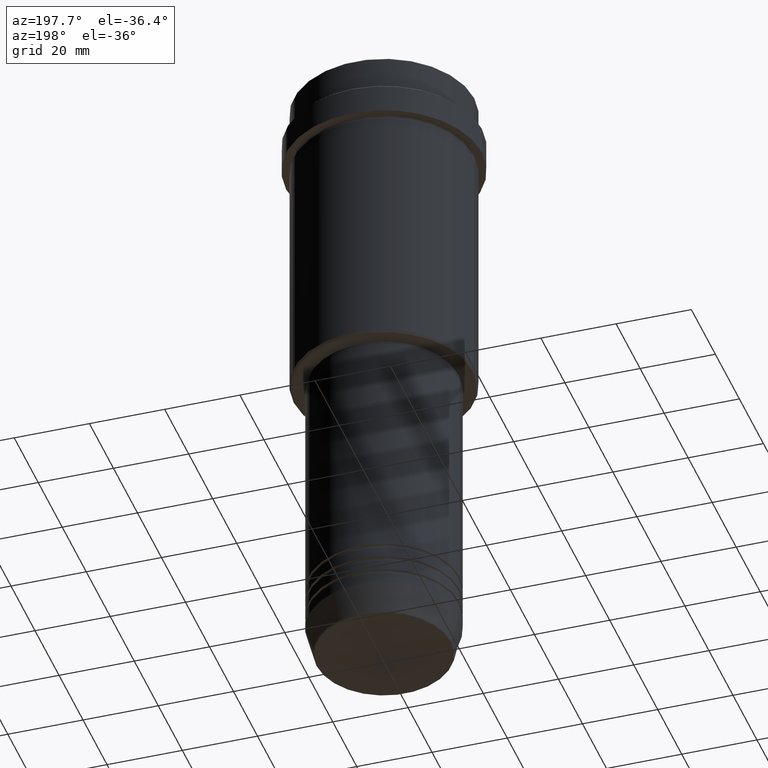
[diagram: clean part render]
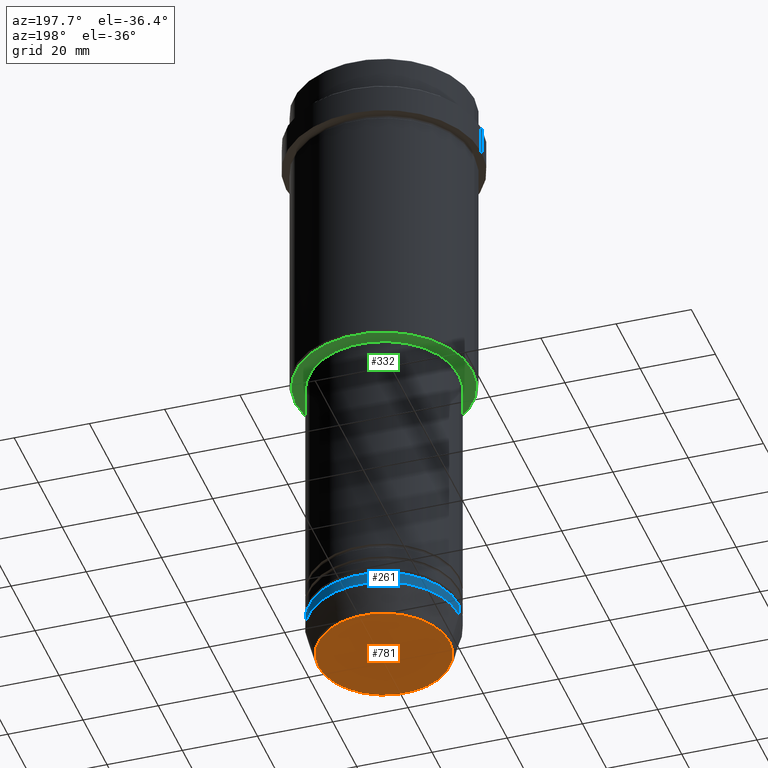
[diagram: same view with three faces highlighted in distinct colors, each labeled with its STEP entity id]
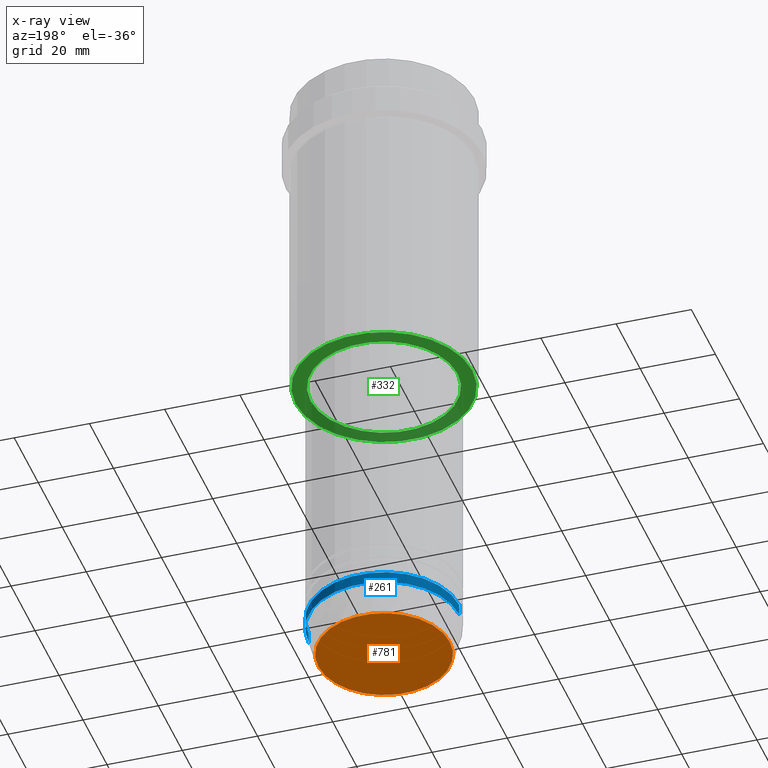
[diagram: x-ray of the same camera — body ghosted, the three highlighted faces saturated]
A machine part, auxiliary view with three faces highlighted in distinct colors.
The next image is the same camera in x-ray (body ghosted, the three faces saturated) — at least one of them is partly hidden behind the body in this view.
Their STEP definitions:

[orange] entity #781 — the highlighted planar face has unit normal (0, -0, 1).
#31 = EDGE_CURVE ( 'NONE', #400, #545, #894, .T. ) ;
#48 = FACE_OUTER_BOUND ( 'NONE', #212, .T. ) ;
#71 = DIRECTION ( 'NONE',  ( 0.000000000000000000, -0.000000000000000000, 1.000000000000000000 ) ) ;
#212 = EDGE_LOOP ( 'NONE', ( #464, #820 ) ) ;
#253 = DIRECTION ( 'NONE',  ( 1.000000000000000000, 0.000000000000000000, 0.000000000000000000 ) ) ;
#400 = VERTEX_POINT ( 'NONE', #890 ) ;
#464 = ORIENTED_EDGE ( 'NONE', *, *, #31, .T. ) ;
#512 = AXIS2_PLACEMENT_3D ( 'NONE', #1183, #71, #1283 ) ;
#545 = VERTEX_POINT ( 'NONE', #968 ) ;
#628 = CARTESIAN_POINT ( 'NONE',  ( 0.000000000000000000, 0.000000000000000000, -170.0000000000000000 ) ) ;
#741 = DIRECTION ( 'NONE',  ( 1.000000000000000000, 0.000000000000000000, 0.000000000000000000 ) ) ;
#781 = ADVANCED_FACE ( 'NONE', ( #48 ), #1356, .F. ) ;
#788 = AXIS2_PLACEMENT_3D ( 'NONE', #803, #1008, #253 ) ;
#803 = CARTESIAN_POINT ( 'NONE',  ( 0.000000000000000000, 0.000000000000000000, -170.0000000000000000 ) ) ;
#818 = CIRCLE ( 'NONE', #901, 17.47274296656153325 ) ;
#820 = ORIENTED_EDGE ( 'NONE', *, *, #1073, .T. ) ;
#890 = CARTESIAN_POINT ( 'NONE',  ( 17.47274296656153325, 0.000000000000000000, -170.0000000000000000 ) ) ;
#894 = CIRCLE ( 'NONE', #788, 17.47274296656153325 ) ;
#901 = AXIS2_PLACEMENT_3D ( 'NONE', #628, #1057, #741 ) ;
#968 = CARTESIAN_POINT ( 'NONE',  ( -17.47274296656153325, 2.169366823916867714E-15, -170.0000000000000000 ) ) ;
#1008 = DIRECTION ( 'NONE',  ( 0.000000000000000000, 0.000000000000000000, -1.000000000000000000 ) ) ;
#1057 = DIRECTION ( 'NONE',  ( 0.000000000000000000, 0.000000000000000000, -1.000000000000000000 ) ) ;
#1073 = EDGE_CURVE ( 'NONE', #545, #400, #818, .T. ) ;
#1183 = CARTESIAN_POINT ( 'NONE',  ( 0.000000000000000000, 0.000000000000000000, -170.0000000000000000 ) ) ;
#1283 = DIRECTION ( 'NONE',  ( 1.000000000000000000, 0.000000000000000000, 0.000000000000000000 ) ) ;
#1356 = PLANE ( 'NONE',  #512 ) ;

[blue] entity #261 — the highlighted cylindrical surface (partial cylindrical patch) has radius 20 mm, axis along (-0, -0, 1).
#37 = DIRECTION ( 'NONE',  ( -0.000000000000000000, -0.000000000000000000, 1.000000000000000000 ) ) ;
#40 = EDGE_CURVE ( 'NONE', #752, #619, #1081, .T. ) ;
#43 = ORIENTED_EDGE ( 'NONE', *, *, #521, .F. ) ;
#51 = CIRCLE ( 'NONE', #881, 20.00000000000000000 ) ;
#75 = FACE_OUTER_BOUND ( 'NONE', #351, .T. ) ;
#94 = ORIENTED_EDGE ( 'NONE', *, *, #40, .T. ) ;
#101 = AXIS2_PLACEMENT_3D ( 'NONE', #1380, #735, #1387 ) ;
#106 = ORIENTED_EDGE ( 'NONE', *, *, #126, .T. ) ;
#126 = EDGE_CURVE ( 'NONE', #619, #764, #275, .T. ) ;
#248 = CARTESIAN_POINT ( 'NONE',  ( -20.00000000000000000, 2.449293598294706513E-15, 0.000000000000000000 ) ) ;
#257 = CARTESIAN_POINT ( 'NONE',  ( 0.000000000000000000, 0.000000000000000000, -162.0000000000000000 ) ) ;
#261 = ADVANCED_FACE ( 'NONE', ( #75 ), #513, .T. ) ;
#270 = CARTESIAN_POINT ( 'NONE',  ( -20.00000000000000000, 2.449293598294706513E-15, -159.0000000000000000 ) ) ;
#275 = LINE ( 'NONE', #248, #1122 ) ;
#351 = EDGE_LOOP ( 'NONE', ( #94, #106, #659, #43 ) ) ;
#498 = EDGE_CURVE ( 'NONE', #1224, #764, #51, .T. ) ;
#499 = CARTESIAN_POINT ( 'NONE',  ( 0.000000000000000000, 0.000000000000000000, -159.0000000000000000 ) ) ;
#513 = CYLINDRICAL_SURFACE ( 'NONE', #101, 20.00000000000000000 ) ;
#521 = EDGE_CURVE ( 'NONE', #752, #1224, #1162, .T. ) ;
#572 = CARTESIAN_POINT ( 'NONE',  ( -20.00000000000000000, 2.449293598294706513E-15, -162.0000000000000000 ) ) ;
#619 = VERTEX_POINT ( 'NONE', #572 ) ;
#621 = CARTESIAN_POINT ( 'NONE',  ( 20.00000000000000000, 0.000000000000000000, 0.000000000000000000 ) ) ;
#659 = ORIENTED_EDGE ( 'NONE', *, *, #498, .F. ) ;
#687 = DIRECTION ( 'NONE',  ( 1.000000000000000000, 0.000000000000000000, 0.000000000000000000 ) ) ;
#720 = DIRECTION ( 'NONE',  ( 1.000000000000000000, 0.000000000000000000, 0.000000000000000000 ) ) ;
#735 = DIRECTION ( 'NONE',  ( -0.000000000000000000, -0.000000000000000000, 1.000000000000000000 ) ) ;
#752 = VERTEX_POINT ( 'NONE', #834 ) ;
#764 = VERTEX_POINT ( 'NONE', #270 ) ;
#765 = AXIS2_PLACEMENT_3D ( 'NONE', #257, #37, #687 ) ;
#834 = CARTESIAN_POINT ( 'NONE',  ( 20.00000000000000000, 0.000000000000000000, -162.0000000000000000 ) ) ;
#871 = CARTESIAN_POINT ( 'NONE',  ( 20.00000000000000000, 0.000000000000000000, -159.0000000000000000 ) ) ;
#881 = AXIS2_PLACEMENT_3D ( 'NONE', #499, #1363, #720 ) ;
#898 = VECTOR ( 'NONE', #1044, 1000.000000000000000 ) ;
#1028 = DIRECTION ( 'NONE',  ( -0.000000000000000000, -0.000000000000000000, 1.000000000000000000 ) ) ;
#1044 = DIRECTION ( 'NONE',  ( -0.000000000000000000, -0.000000000000000000, 1.000000000000000000 ) ) ;
#1081 = CIRCLE ( 'NONE', #765, 20.00000000000000000 ) ;
#1122 = VECTOR ( 'NONE', #1028, 1000.000000000000000 ) ;
#1162 = LINE ( 'NONE', #621, #898 ) ;
#1224 = VERTEX_POINT ( 'NONE', #871 ) ;
#1363 = DIRECTION ( 'NONE',  ( -0.000000000000000000, -0.000000000000000000, 1.000000000000000000 ) ) ;
#1380 = CARTESIAN_POINT ( 'NONE',  ( 0.000000000000000000, 0.000000000000000000, 0.000000000000000000 ) ) ;
#1387 = DIRECTION ( 'NONE',  ( 1.000000000000000000, 0.000000000000000000, 0.000000000000000000 ) ) ;

[green] entity #332 — the highlighted planar face has unit normal (0, 0, -1).
#28 = DIRECTION ( 'NONE',  ( 1.000000000000000000, 0.000000000000000000, 0.000000000000000000 ) ) ;
#29 = CIRCLE ( 'NONE', #837, 19.49999999999998934 ) ;
#38 = EDGE_CURVE ( 'NONE', #1167, #644, #127, .T. ) ;
#92 = CARTESIAN_POINT ( 'NONE',  ( -19.49999999999998934, 2.388061258337337361E-15, -85.99999999999998579 ) ) ;
#127 = CIRCLE ( 'NONE', #578, 23.50000000000001066 ) ;
#174 = DIRECTION ( 'NONE',  ( 0.000000000000000000, 0.000000000000000000, -1.000000000000000000 ) ) ;
#223 = AXIS2_PLACEMENT_3D ( 'NONE', #285, #174, #1133 ) ;
#235 = CARTESIAN_POINT ( 'NONE',  ( 0.000000000000000000, 24.00000000000000000, -85.99999999999998579 ) ) ;
#239 = PLANE ( 'NONE',  #402 ) ;
#285 = CARTESIAN_POINT ( 'NONE',  ( 0.000000000000000000, 0.000000000000000000, -85.99999999999998579 ) ) ;
#320 = EDGE_LOOP ( 'NONE', ( #1331, #804 ) ) ;
#332 = ADVANCED_FACE ( 'NONE', ( #1105, #1408 ), #239, .T. ) ;
#376 = DIRECTION ( 'NONE',  ( -1.000000000000000000, 0.000000000000000000, 0.000000000000000000 ) ) ;
#402 = AXIS2_PLACEMENT_3D ( 'NONE', #235, #647, #880 ) ;
#413 = DIRECTION ( 'NONE',  ( 1.000000000000000000, 0.000000000000000000, 0.000000000000000000 ) ) ;
#460 = EDGE_CURVE ( 'NONE', #604, #1108, #939, .T. ) ;
#462 = CARTESIAN_POINT ( 'NONE',  ( 0.000000000000000000, 0.000000000000000000, -85.99999999999998579 ) ) ;
#463 = EDGE_LOOP ( 'NONE', ( #648, #661 ) ) ;
#523 = CARTESIAN_POINT ( 'NONE',  ( 0.000000000000000000, 0.000000000000000000, -85.99999999999998579 ) ) ;
#578 = AXIS2_PLACEMENT_3D ( 'NONE', #595, #1137, #376 ) ;
#595 = CARTESIAN_POINT ( 'NONE',  ( 0.000000000000000000, 0.000000000000000000, -85.99999999999998579 ) ) ;
#604 = VERTEX_POINT ( 'NONE', #92 ) ;
#644 = VERTEX_POINT ( 'NONE', #1310 ) ;
#647 = DIRECTION ( 'NONE',  ( 0.000000000000000000, 0.000000000000000000, -1.000000000000000000 ) ) ;
#648 = ORIENTED_EDGE ( 'NONE', *, *, #38, .T. ) ;
#661 = ORIENTED_EDGE ( 'NONE', *, *, #689, .T. ) ;
#689 = EDGE_CURVE ( 'NONE', #644, #1167, #1285, .T. ) ;
#804 = ORIENTED_EDGE ( 'NONE', *, *, #460, .T. ) ;
#831 = EDGE_CURVE ( 'NONE', #1108, #604, #29, .T. ) ;
#837 = AXIS2_PLACEMENT_3D ( 'NONE', #523, #961, #413 ) ;
#880 = DIRECTION ( 'NONE',  ( -1.000000000000000000, 0.000000000000000000, -0.000000000000000000 ) ) ;
#939 = CIRCLE ( 'NONE', #1372, 19.49999999999998934 ) ;
#961 = DIRECTION ( 'NONE',  ( -0.000000000000000000, -0.000000000000000000, 1.000000000000000000 ) ) ;
#1105 = FACE_OUTER_BOUND ( 'NONE', #463, .T. ) ;
#1108 = VERTEX_POINT ( 'NONE', #1226 ) ;
#1133 = DIRECTION ( 'NONE',  ( -1.000000000000000000, 0.000000000000000000, 0.000000000000000000 ) ) ;
#1137 = DIRECTION ( 'NONE',  ( 0.000000000000000000, 0.000000000000000000, -1.000000000000000000 ) ) ;
#1167 = VERTEX_POINT ( 'NONE', #1195 ) ;
#1195 = CARTESIAN_POINT ( 'NONE',  ( 23.50000000000001066, 0.000000000000000000, -85.99999999999998579 ) ) ;
#1222 = DIRECTION ( 'NONE',  ( -0.000000000000000000, -0.000000000000000000, 1.000000000000000000 ) ) ;
#1226 = CARTESIAN_POINT ( 'NONE',  ( 19.49999999999998934, 0.000000000000000000, -85.99999999999998579 ) ) ;
#1285 = CIRCLE ( 'NONE', #223, 23.50000000000001066 ) ;
#1310 = CARTESIAN_POINT ( 'NONE',  ( -23.50000000000001066, 2.908536147974964107E-15, -85.99999999999998579 ) ) ;
#1331 = ORIENTED_EDGE ( 'NONE', *, *, #831, .T. ) ;
#1372 = AXIS2_PLACEMENT_3D ( 'NONE', #462, #1222, #28 ) ;
#1408 = FACE_BOUND ( 'NONE', #320, .T. ) ;